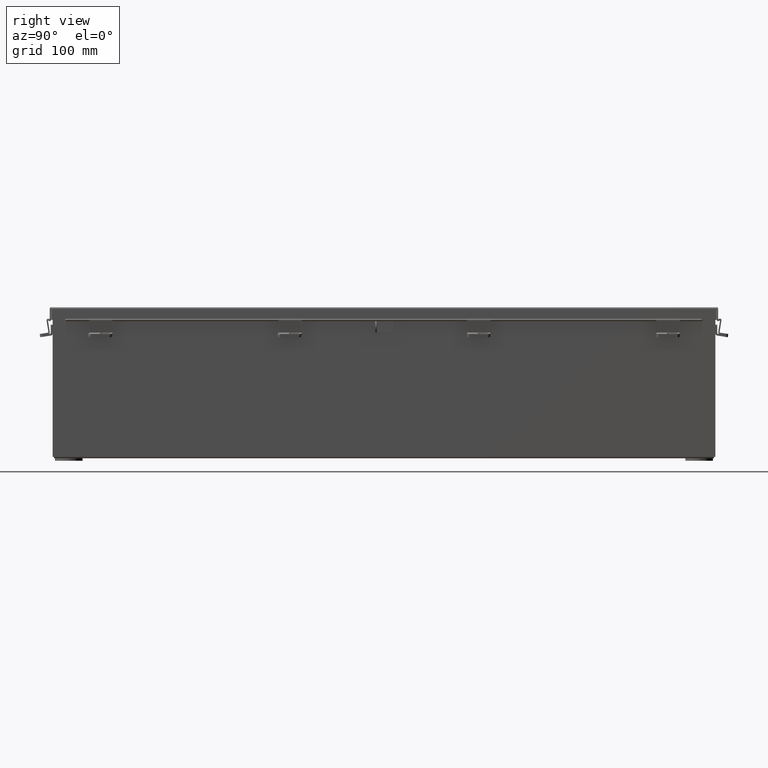
[diagram: clean part render]
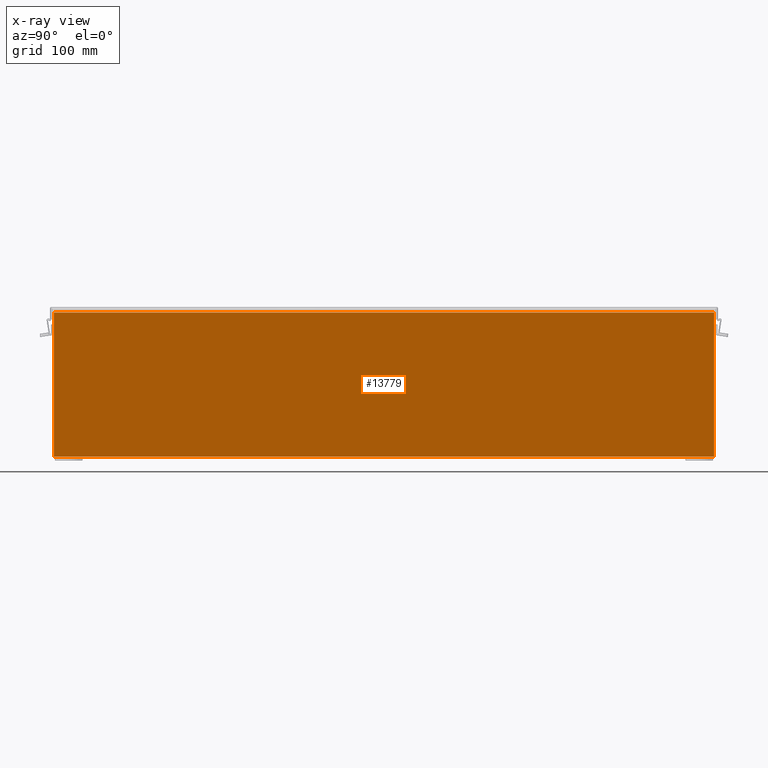
[diagram: x-ray — body ghosted, one internal face saturated and labeled with its STEP entity id]
A machine part, right view, then the same camera in x-ray: the body is ghosted and one INTERNAL B-rep face — a face not visible from any outside direction — is saturated and labeled: STEP entity #13779.
In plain terms, the highlighted planar face has unit normal (-1, 0, 0).
Its self-contained STEP definition (entity closure, byte-faithful):
#270 = PLANE ( 'NONE',  #8266 ) ;
#444 = EDGE_CURVE ( 'NONE', #18195, #12101, #13927, .T. ) ;
#1178 = FACE_OUTER_BOUND ( 'NONE', #13639, .T. ) ;
#2563 = DIRECTION ( 'NONE',  ( -1.000000000000000000, 0.0000000000000000000, 3.479795166820705900E-015 ) ) ;
#2665 = DIRECTION ( 'NONE',  ( 3.479795166820705900E-015, 0.0000000000000000000, 1.000000000000000000 ) ) ;
#3680 = VECTOR ( 'NONE', #4132, 39.37007874015748100 ) ;
#4132 = DIRECTION ( 'NONE',  ( -0.0000000000000000000, -1.000000000000000000, -0.0000000000000000000 ) ) ;
#4608 = EDGE_CURVE ( 'NONE', #15947, #25525, #5502, .T. ) ;
#5502 = LINE ( 'NONE', #24022, #11018 ) ;
#5822 = VECTOR ( 'NONE', #29387, 39.37007874015748100 ) ;
#5850 = CARTESIAN_POINT ( 'NONE',  ( 3.925300000000001800, -17.92530000000001100, 0.01300000000000039000 ) ) ;
#6004 = CARTESIAN_POINT ( 'NONE',  ( 3.925300000000001800, -17.92530000000001100, 0.01300000000000011600 ) ) ;
#6563 = LINE ( 'NONE', #6004, #5822 ) ;
#6772 = CARTESIAN_POINT ( 'NONE',  ( 3.925300000000001800, 17.92529999999999300, 0.01300000000000039000 ) ) ;
#8266 = AXIS2_PLACEMENT_3D ( 'NONE', #27454, #2563, #2665 ) ;
#9726 = CARTESIAN_POINT ( 'NONE',  ( 3.925300000000029300, 17.92529999999999300, 7.850599999999999100 ) ) ;
#9903 = LINE ( 'NONE', #15541, #3680 ) ;
#10313 = CARTESIAN_POINT ( 'NONE',  ( 3.925300000000028900, -17.92530000000001100, 7.837599999999999200 ) ) ;
#10469 = EDGE_CURVE ( 'NONE', #25525, #18195, #6563, .T. ) ;
#11018 = VECTOR ( 'NONE', #23987, 39.37007874015748100 ) ;
#11281 = CARTESIAN_POINT ( 'NONE',  ( 3.925300000000029300, 17.92529999999999300, 7.837599999999999200 ) ) ;
#12101 = VERTEX_POINT ( 'NONE', #11281 ) ;
#13639 = EDGE_LOOP ( 'NONE', ( #27894, #21761, #15234, #21594 ) ) ;
#13779 = ADVANCED_FACE ( 'NONE', ( #1178 ), #270, .T. ) ;
#13927 = LINE ( 'NONE', #9726, #19791 ) ;
#14946 = EDGE_CURVE ( 'NONE', #12101, #15947, #9903, .T. ) ;
#15234 = ORIENTED_EDGE ( 'NONE', *, *, #444, .F. ) ;
#15541 = CARTESIAN_POINT ( 'NONE',  ( 3.925300000000028900, 17.92529999999999300, 7.837599999999999200 ) ) ;
#15947 = VERTEX_POINT ( 'NONE', #10313 ) ;
#18195 = VERTEX_POINT ( 'NONE', #6772 ) ;
#19791 = VECTOR ( 'NONE', #28574, 39.37007874015748100 ) ;
#21594 = ORIENTED_EDGE ( 'NONE', *, *, #10469, .F. ) ;
#21761 = ORIENTED_EDGE ( 'NONE', *, *, #14946, .F. ) ;
#23987 = DIRECTION ( 'NONE',  ( -3.479795166820706300E-015, -0.0000000000000000000, -1.000000000000000000 ) ) ;
#24022 = CARTESIAN_POINT ( 'NONE',  ( 3.925300000000001800, -17.92530000000001100, 0.0000000000000000000 ) ) ;
#25525 = VERTEX_POINT ( 'NONE', #5850 ) ;
#27454 = CARTESIAN_POINT ( 'NONE',  ( 3.925300000000001800, 0.0000000000000000000, -1.391535071772734100E-014 ) ) ;
#27894 = ORIENTED_EDGE ( 'NONE', *, *, #4608, .F. ) ;
#28574 = DIRECTION ( 'NONE',  ( 3.479795166820706300E-015, -0.0000000000000000000, 1.000000000000000000 ) ) ;
#29387 = DIRECTION ( 'NONE',  ( 5.303270486319196900E-032, 1.000000000000000000, 1.524018004532289100E-017 ) ) ;